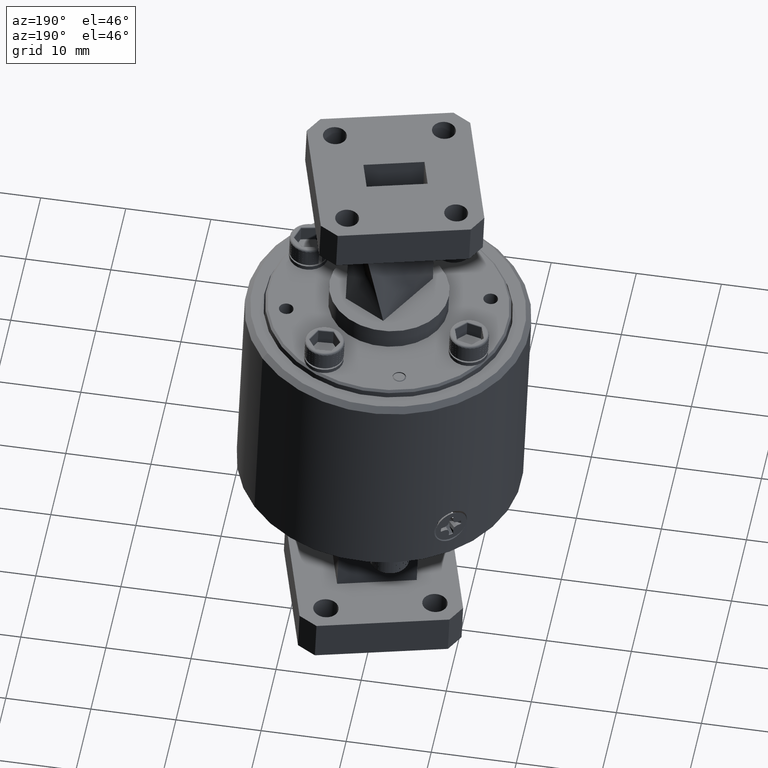
[diagram: clean part render]
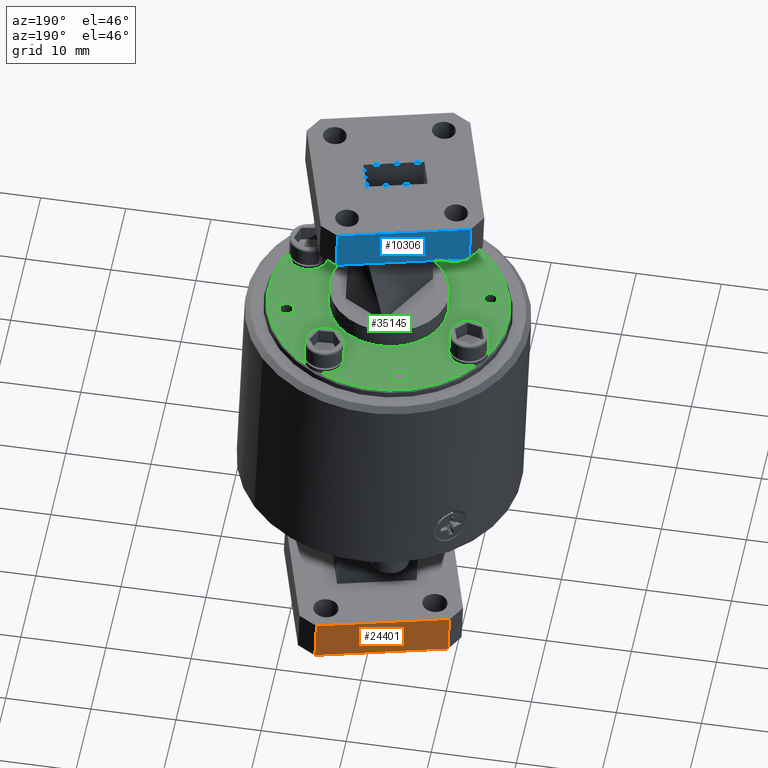
[diagram: same view with three faces highlighted in distinct colors, each labeled with its STEP entity id]
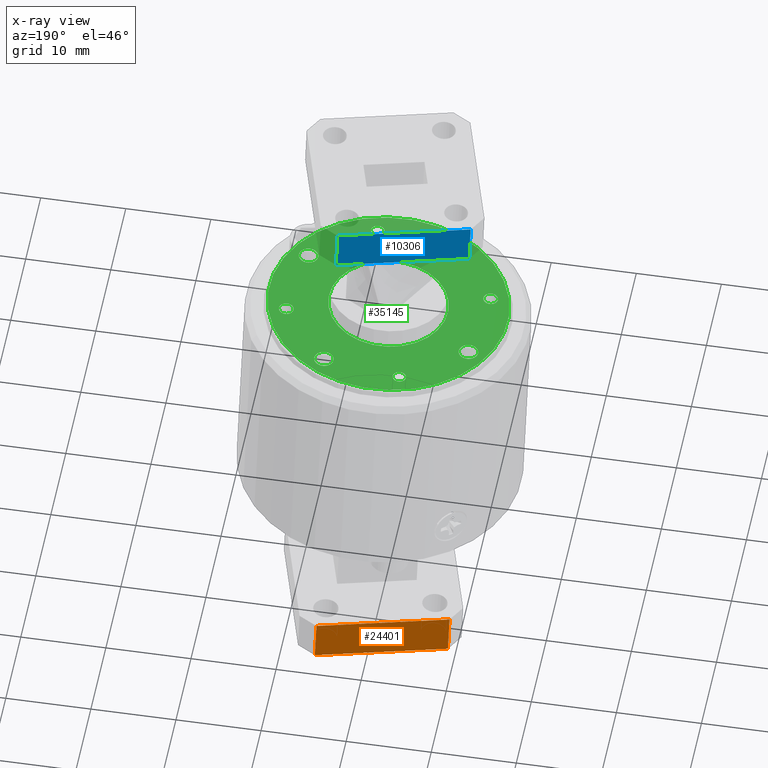
[diagram: x-ray of the same camera — body ghosted, the three highlighted faces saturated]
A machine part, auxiliary view with three faces highlighted in distinct colors.
The next image is the same camera in x-ray (body ghosted, the three faces saturated) — at least one of them is partly hidden behind the body in this view.
Their STEP definitions:

[orange] entity #24401 — the highlighted planar face has unit normal (0.2763, -0.961, -0.0077).
#2268 = AXIS2_PLACEMENT_3D ( 'NONE', #24468, #27569, #9507 ) ;
#4020 = VERTEX_POINT ( 'NONE', #4633 ) ;
#4633 = CARTESIAN_POINT ( 'NONE',  ( -5.691139806082802900, -1.619158402625346500, -2.179849709080731400 ) ) ;
#5985 = EDGE_CURVE ( 'NONE', #8149, #4020, #21956, .T. ) ;
#6436 = VERTEX_POINT ( 'NONE', #18915 ) ;
#8149 = VERTEX_POINT ( 'NONE', #33710 ) ;
#9507 = DIRECTION ( 'NONE',  ( 0.03562249074304870600, 0.01820857446431909500, -0.9991994225224706300 ) ) ;
#9990 = CARTESIAN_POINT ( 'NONE',  ( -6.344221990921528900, -1.806697032639361000, -2.206550310174017100 ) ) ;
#12526 = LINE ( 'NONE', #17666, #34373 ) ;
#15639 = EDGE_CURVE ( 'NONE', #4020, #37955, #37851, .T. ) ;
#15999 = VECTOR ( 'NONE', #32068, 39.37007874015748900 ) ;
#16244 = LINE ( 'NONE', #27714, #19497 ) ;
#17666 = CARTESIAN_POINT ( 'NONE',  ( -6.337453717680349800, -1.803237403491140300, -2.396398200453286400 ) ) ;
#18915 = CARTESIAN_POINT ( 'NONE',  ( -6.270224669241068600, -1.783931956283815000, -2.393649609164271800 ) ) ;
#18941 = ORIENTED_EDGE ( 'NONE', *, *, #21888, .T. ) ;
#18997 = PLANE ( 'NONE',  #2268 ) ;
#19497 = VECTOR ( 'NONE', #30815, 39.37007874015748900 ) ;
#21888 = EDGE_CURVE ( 'NONE', #6436, #8149, #16244, .T. ) ;
#21956 = LINE ( 'NONE', #9990, #30797 ) ;
#22263 = EDGE_CURVE ( 'NONE', #6436, #37955, #12526, .T. ) ;
#23790 = DIRECTION ( 'NONE',  ( 0.9604149777040087400, 0.2757921029617860200, 0.03926558984306748700 ) ) ;
#24295 = EDGE_LOOP ( 'NONE', ( #37509, #18941, #25016, #37109 ) ) ;
#24401 = ADVANCED_FACE ( 'NONE', ( #31982 ), #18997, .F. ) ;
#24468 = CARTESIAN_POINT ( 'NONE',  ( -6.337453717680349800, -1.803237403491140300, -2.396398200453286400 ) ) ;
#25016 = ORIENTED_EDGE ( 'NONE', *, *, #5985, .T. ) ;
#27569 = DIRECTION ( 'NONE',  ( 0.2762862804322173100, -0.9610448292144820900, -0.007663386003408646100 ) ) ;
#27714 = CARTESIAN_POINT ( 'NONE',  ( -6.270224669241068600, -1.783931956283815000, -2.393649609164271800 ) ) ;
#30797 = VECTOR ( 'NONE', #30894, 39.37007874015748100 ) ;
#30815 = DIRECTION ( 'NONE',  ( -0.03562249074304870600, -0.01820857446431909500, 0.9991994225224706300 ) ) ;
#30894 = DIRECTION ( 'NONE',  ( 0.9604149777040087400, 0.2757921029617860200, 0.03926558984306748700 ) ) ;
#31935 = CARTESIAN_POINT ( 'NONE',  ( -5.684371532841624700, -1.615698773477125800, -2.369697599360000700 ) ) ;
#31982 = FACE_OUTER_BOUND ( 'NONE', #24295, .T. ) ;
#32068 = DIRECTION ( 'NONE',  ( 0.03562249074304870600, 0.01820857446431909500, -0.9991994225224706300 ) ) ;
#33710 = CARTESIAN_POINT ( 'NONE',  ( -6.276992942482248600, -1.787391585432035700, -2.203801718885002100 ) ) ;
#34373 = VECTOR ( 'NONE', #23790, 39.37007874015748100 ) ;
#37109 = ORIENTED_EDGE ( 'NONE', *, *, #15639, .T. ) ;
#37317 = CARTESIAN_POINT ( 'NONE',  ( -5.684371532841624700, -1.615698773477125800, -2.369697599360000700 ) ) ;
#37509 = ORIENTED_EDGE ( 'NONE', *, *, #22263, .F. ) ;
#37851 = LINE ( 'NONE', #31935, #15999 ) ;
#37955 = VERTEX_POINT ( 'NONE', #37317 ) ;

[blue] entity #10306 — the highlighted planar face has unit normal (-0.2763, 0.961, 0.0077).
#539 = ORIENTED_EDGE ( 'NONE', *, *, #26205, .F. ) ;
#901 = EDGE_CURVE ( 'NONE', #30244, #2506, #15665, .T. ) ;
#1920 = AXIS2_PLACEMENT_3D ( 'NONE', #38183, #32331, #14518 ) ;
#2506 = VERTEX_POINT ( 'NONE', #22694 ) ;
#4419 = LINE ( 'NONE', #17658, #16512 ) ;
#4590 = FACE_OUTER_BOUND ( 'NONE', #29461, .T. ) ;
#6049 = EDGE_CURVE ( 'NONE', #29852, #30244, #17303, .T. ) ;
#9150 = EDGE_CURVE ( 'NONE', #24829, #29852, #16655, .T. ) ;
#10145 = CARTESIAN_POINT ( 'NONE',  ( -5.781264707662702800, -1.665226096020117700, 0.3481248299011195400 ) ) ;
#10306 = ADVANCED_FACE ( 'NONE', ( #4590 ), #17518, .T. ) ;
#10751 = DIRECTION ( 'NONE',  ( 0.9604149777040063000, 0.2757921029617945700, 0.03926558984306729300 ) ) ;
#11008 = CARTESIAN_POINT ( 'NONE',  ( -5.714035659223422500, -1.645920648812792000, 0.3508734211901343200 ) ) ;
#14518 = DIRECTION ( 'NONE',  ( 0.03562249074304842800, 0.01820857446431912300, -0.9991994225224706300 ) ) ;
#15665 = LINE ( 'NONE', #28526, #31006 ) ;
#15894 = CARTESIAN_POINT ( 'NONE',  ( -6.367117844062145000, -1.833459278826812000, 0.3241728200968485000 ) ) ;
#16512 = VECTOR ( 'NONE', #26508, 39.37007874015748900 ) ;
#16655 = LINE ( 'NONE', #15894, #38533 ) ;
#16831 = DIRECTION ( 'NONE',  ( 0.03562249074304842800, 0.01820857446431912300, -0.9991994225224706300 ) ) ;
#17303 = LINE ( 'NONE', #11008, #36369 ) ;
#17518 = PLANE ( 'NONE',  #1920 ) ;
#17658 = CARTESIAN_POINT ( 'NONE',  ( -5.707267385982242500, -1.642461019664571300, 0.1610255309108648800 ) ) ;
#18235 = ORIENTED_EDGE ( 'NONE', *, *, #901, .T. ) ;
#21192 = ORIENTED_EDGE ( 'NONE', *, *, #6049, .T. ) ;
#21404 = CARTESIAN_POINT ( 'NONE',  ( -6.360349570820965900, -1.829999649678591300, 0.1343249298175791500 ) ) ;
#22694 = CARTESIAN_POINT ( 'NONE',  ( -5.774496434421523700, -1.661766466871897000, 0.1582769396218501600 ) ) ;
#24829 = VERTEX_POINT ( 'NONE', #21404 ) ;
#26205 = EDGE_CURVE ( 'NONE', #24829, #2506, #4419, .T. ) ;
#26508 = DIRECTION ( 'NONE',  ( 0.9604149777040063000, 0.2757921029617945700, 0.03926558984306729300 ) ) ;
#28526 = CARTESIAN_POINT ( 'NONE',  ( -5.781264707662702800, -1.665226096020117700, 0.3481248299011195400 ) ) ;
#29461 = EDGE_LOOP ( 'NONE', ( #539, #32374, #21192, #18235 ) ) ;
#29852 = VERTEX_POINT ( 'NONE', #36719 ) ;
#30244 = VERTEX_POINT ( 'NONE', #10145 ) ;
#31006 = VECTOR ( 'NONE', #16831, 39.37007874015748100 ) ;
#32331 = DIRECTION ( 'NONE',  ( -0.2762862804322258100, 0.9610448292144796500, 0.007663386003408401500 ) ) ;
#32374 = ORIENTED_EDGE ( 'NONE', *, *, #9150, .T. ) ;
#36369 = VECTOR ( 'NONE', #10751, 39.37007874015748900 ) ;
#36712 = DIRECTION ( 'NONE',  ( -0.03562249074304842800, -0.01820857446431912300, 0.9991994225224706300 ) ) ;
#36719 = CARTESIAN_POINT ( 'NONE',  ( -6.367117844062145000, -1.833459278826811800, 0.3241728200968485000 ) ) ;
#38183 = CARTESIAN_POINT ( 'NONE',  ( -5.714035659223422500, -1.645920648812792000, 0.3508734211901343200 ) ) ;
#38533 = VECTOR ( 'NONE', #36712, 39.37007874015748100 ) ;

[green] entity #35145 — the highlighted planar face has unit normal (0.0356, 0.0182, -0.9992).
#46 = EDGE_LOOP ( 'NONE', ( #15499, #17839 ) ) ;
#65 = VERTEX_POINT ( 'NONE', #236 ) ;
#236 = CARTESIAN_POINT ( 'NONE',  ( -6.210158264223941200, -2.516669442206202600, -0.5233546832888029700 ) ) ;
#781 = CARTESIAN_POINT ( 'NONE',  ( -5.811151834523572600, -2.544929059523153700, -0.5096446718602671800 ) ) ;
#1005 = CARTESIAN_POINT ( 'NONE',  ( -5.811151834523572600, -2.544929059523153700, -0.5096446718602671800 ) ) ;
#1382 = CARTESIAN_POINT ( 'NONE',  ( -5.781619073959174000, -2.536448452357078500, -0.5084372549725928400 ) ) ;
#1395 = CIRCLE ( 'NONE', #9815, 0.2749999999999999100 ) ;
#1429 = DIRECTION ( 'NONE',  ( -0.9604149777040063000, -0.2757921029617945200, -0.03926558984306728600 ) ) ;
#1499 = AXIS2_PLACEMENT_3D ( 'NONE', #33250, #21415, #29754 ) ;
#1672 = CIRCLE ( 'NONE', #21477, 0.04449999999999967900 ) ;
#2150 = DIRECTION ( 'NONE',  ( 0.03562249074304843500, 0.01820857446431912300, -0.9991994225224707400 ) ) ;
#2247 = DIRECTION ( 'NONE',  ( 0.03562249074304842800, 0.01820857446431912300, -0.9991994225224706300 ) ) ;
#2482 = EDGE_CURVE ( 'NONE', #26799, #17406, #3933, .T. ) ;
#2525 = EDGE_LOOP ( 'NONE', ( #12467, #7438 ) ) ;
#2778 = CARTESIAN_POINT ( 'NONE',  ( -6.471290303657642800, -2.246814432715258400, -0.5277466980594641700 ) ) ;
#3024 = EDGE_CURVE ( 'NONE', #4080, #24079, #25330, .T. ) ;
#3208 = CARTESIAN_POINT ( 'NONE',  ( -5.676546909607576900, -2.018596467514373000, -0.4952544224643259900 ) ) ;
#3455 = CARTESIAN_POINT ( 'NONE',  ( -6.167419797716113400, -2.504396693624402600, -0.5216073645407863800 ) ) ;
#3791 = DIRECTION ( 'NONE',  ( 0.03562249074304842800, 0.01820857446431912300, -0.9991994225224706300 ) ) ;
#3843 = DIRECTION ( 'NONE',  ( 0.03562249074304842800, 0.01820857446431912300, -0.9991994225224706300 ) ) ;
#3852 = DIRECTION ( 'NONE',  ( 0.03562249074304842800, 0.01820857446431912300, -0.9991994225224706300 ) ) ;
#3933 = CIRCLE ( 'NONE', #14465, 0.03350000000000001600 ) ;
#3949 = DIRECTION ( 'NONE',  ( 0.03562249074304842800, 0.01820857446431912300, -0.9991994225224706300 ) ) ;
#4080 = VERTEX_POINT ( 'NONE', #34679 ) ;
#4451 = CIRCLE ( 'NONE', #33388, 0.03075000000000010700 ) ;
#4636 = CARTESIAN_POINT ( 'NONE',  ( -5.490466507677425100, -1.965161747565525600, -0.4876467144322317300 ) ) ;
#4738 = DIRECTION ( 'NONE',  ( 0.03562249074304842800, 0.01820857446431912300, -0.9991994225224706300 ) ) ;
#4776 = CARTESIAN_POINT ( 'NONE',  ( -5.573487067204288400, -2.333843380141842800, -0.4973250287463130100 ) ) ;
#4943 = DIRECTION ( 'NONE',  ( -0.9604149777040061900, -0.2757921029617949600, -0.03926558984306725100 ) ) ;
#4948 = EDGE_LOOP ( 'NONE', ( #8062, #24071 ) ) ;
#5079 = CARTESIAN_POINT ( 'NONE',  ( -5.713902259236243200, -1.684481898033330900, -0.4904975548015525500 ) ) ;
#5345 = EDGE_CURVE ( 'NONE', #28018, #7221, #10377, .T. ) ;
#5348 = FACE_BOUND ( 'NONE', #24612, .T. ) ;
#5358 = CIRCLE ( 'NONE', #21823, 0.03075000000000010700 ) ;
#6130 = DIRECTION ( 'NONE',  ( -0.9604149777040057500, -0.2757921029617964600, -0.03926558984306789000 ) ) ;
#6295 = FACE_OUTER_BOUND ( 'NONE', #8527, .T. ) ;
#6300 = CIRCLE ( 'NONE', #9816, 0.03075000000000010700 ) ;
#6320 = ORIENTED_EDGE ( 'NONE', *, *, #14572, .T. ) ;
#6539 = EDGE_CURVE ( 'NONE', #15883, #23794, #1395, .T. ) ;
#6672 = AXIS2_PLACEMENT_3D ( 'NONE', #31583, #8337, #4943 ) ;
#6964 = EDGE_CURVE ( 'NONE', #7221, #28018, #23295, .T. ) ;
#7089 = DIRECTION ( 'NONE',  ( -0.9604149777040064100, -0.2757921029617947400, -0.03926558984306744600 ) ) ;
#7155 = CARTESIAN_POINT ( 'NONE',  ( -5.488010134188632700, -2.309297882978242900, -0.4938303912502800000 ) ) ;
#7221 = VERTEX_POINT ( 'NONE', #4776 ) ;
#7235 = AXIS2_PLACEMENT_3D ( 'NONE', #25966, #2150, #14261 ) ;
#7350 = ORIENTED_EDGE ( 'NONE', *, *, #6539, .T. ) ;
#7381 = DIRECTION ( 'NONE',  ( -0.9604149777040064100, -0.2757921029617940200, -0.03926558984306728600 ) ) ;
#7410 = EDGE_LOOP ( 'NONE', ( #20037, #22107 ) ) ;
#7438 = ORIENTED_EDGE ( 'NONE', *, *, #36485, .T. ) ;
#7630 = DIRECTION ( 'NONE',  ( -0.9604149777040064100, -0.2757921029617947400, -0.03926558984306744600 ) ) ;
#7750 = DIRECTION ( 'NONE',  ( -0.9604149777040064100, -0.2757921029617947400, -0.03926558984306744600 ) ) ;
#8062 = ORIENTED_EDGE ( 'NONE', *, *, #15050, .T. ) ;
#8128 = CIRCLE ( 'NONE', #34984, 0.04449999999999967900 ) ;
#8337 = DIRECTION ( 'NONE',  ( -0.03562249074304842800, -0.01820857446431912300, 0.9991994225224706300 ) ) ;
#8527 = EDGE_LOOP ( 'NONE', ( #12073, #31348 ) ) ;
#8607 = DIRECTION ( 'NONE',  ( -0.9604149777040057500, -0.2757921029617964600, -0.03926558984306789000 ) ) ;
#8830 = DIRECTION ( 'NONE',  ( -0.03562249074304842800, -0.01820857446431912300, 0.9991994225224706300 ) ) ;
#9166 = CARTESIAN_POINT ( 'NONE',  ( -6.393311922763723800, -1.879580708679490200, -0.5182745280920589800 ) ) ;
#9815 = AXIS2_PLACEMENT_3D ( 'NONE', #34353, #10460, #1429 ) ;
#9816 = AXIS2_PLACEMENT_3D ( 'NONE', #1005, #24987, #7381 ) ;
#9847 = DIRECTION ( 'NONE',  ( 0.03562249074304842800, 0.01820857446431912300, -0.9991994225224706300 ) ) ;
#10029 = DIRECTION ( 'NONE',  ( 0.03562249074304842800, 0.01820857446431912300, -0.9991994225224706300 ) ) ;
#10046 = CIRCLE ( 'NONE', #29973, 0.2749999999999999100 ) ;
#10081 = DIRECTION ( 'NONE',  ( -0.9604149777040064100, -0.2757921029617947400, -0.03926558984306744600 ) ) ;
#10106 = CARTESIAN_POINT ( 'NONE',  ( -6.390855549274931500, -2.223716844092207700, -0.5244582049101073100 ) ) ;
#10377 = CIRCLE ( 'NONE', #28708, 0.04449999999999967900 ) ;
#10460 = DIRECTION ( 'NONE',  ( 0.03562249074304842800, 0.01820857446431912300, -0.9991994225224706300 ) ) ;
#10671 = EDGE_CURVE ( 'NONE', #17914, #25171, #20881, .T. ) ;
#10896 = PLANE ( 'NONE',  #7235 ) ;
#11123 = DIRECTION ( 'NONE',  ( -0.9604149777040057500, -0.2757921029617964600, -0.03926558984306789000 ) ) ;
#11356 = CARTESIAN_POINT ( 'NONE',  ( -5.713902259236243200, -1.684481898033330900, -0.4904975548015525500 ) ) ;
#11360 = DIRECTION ( 'NONE',  ( -0.9604149777040064100, -0.2757921029617940200, -0.03926558984306728600 ) ) ;
#11402 = FACE_BOUND ( 'NONE', #4948, .T. ) ;
#11747 = AXIS2_PLACEMENT_3D ( 'NONE', #14596, #26183, #11360 ) ;
#11945 = DIRECTION ( 'NONE',  ( -0.9604149777040061900, -0.2757921029617949600, -0.03926558984306725100 ) ) ;
#12073 = ORIENTED_EDGE ( 'NONE', *, *, #30968, .T. ) ;
#12096 = AXIS2_PLACEMENT_3D ( 'NONE', #3455, #15564, #18552 ) ;
#12336 = EDGE_CURVE ( 'NONE', #65, #24773, #32916, .T. ) ;
#12379 = DIRECTION ( 'NONE',  ( -0.9604149777040063000, -0.2757921029617945200, -0.03926558984306728600 ) ) ;
#12444 = AXIS2_PLACEMENT_3D ( 'NONE', #5079, #26425, #8607 ) ;
#12467 = ORIENTED_EDGE ( 'NONE', *, *, #27016, .T. ) ;
#12529 = VERTEX_POINT ( 'NONE', #19123 ) ;
#12788 = AXIS2_PLACEMENT_3D ( 'NONE', #10106, #3843, #7089 ) ;
#13675 = EDGE_CURVE ( 'NONE', #25171, #17914, #1672, .T. ) ;
#14261 = DIRECTION ( 'NONE',  ( -0.9604149777040063000, -0.2757921029617946300, -0.03926558984306730000 ) ) ;
#14302 = AXIS2_PLACEMENT_3D ( 'NONE', #4636, #19107, #7630 ) ;
#14465 = AXIS2_PLACEMENT_3D ( 'NONE', #28292, #4738, #7750 ) ;
#14572 = EDGE_CURVE ( 'NONE', #14636, #35607, #6300, .T. ) ;
#14596 = CARTESIAN_POINT ( 'NONE',  ( -6.070170222428783900, -1.643949532134579400, -0.5024602474820718500 ) ) ;
#14636 = VERTEX_POINT ( 'NONE', #1382 ) ;
#14670 = CARTESIAN_POINT ( 'NONE',  ( -6.124681331208285500, -2.492123945042602700, -0.5198600457927699000 ) ) ;
#15050 = EDGE_CURVE ( 'NONE', #20620, #12529, #8128, .T. ) ;
#15499 = ORIENTED_EDGE ( 'NONE', *, *, #10671, .T. ) ;
#15564 = DIRECTION ( 'NONE',  ( 0.03562249074304842800, 0.01820857446431912300, -0.9991994225224706300 ) ) ;
#15832 = CARTESIAN_POINT ( 'NONE',  ( -5.530748600696460600, -2.321570631560042800, -0.4955777099982964800 ) ) ;
#15883 = VERTEX_POINT ( 'NONE', #3208 ) ;
#16452 = ORIENTED_EDGE ( 'NONE', *, *, #12336, .T. ) ;
#16566 = EDGE_LOOP ( 'NONE', ( #30921, #24815 ) ) ;
#16823 = CARTESIAN_POINT ( 'NONE',  ( -5.840684595087971300, -2.553409666689229000, -0.5108520887479415200 ) ) ;
#16973 = CARTESIAN_POINT ( 'NONE',  ( -5.530748600696460600, -2.321570631560042800, -0.4955777099982964800 ) ) ;
#17255 = EDGE_CURVE ( 'NONE', #24773, #65, #28439, .T. ) ;
#17406 = VERTEX_POINT ( 'NONE', #37648 ) ;
#17839 = ORIENTED_EDGE ( 'NONE', *, *, #13675, .T. ) ;
#17914 = VERTEX_POINT ( 'NONE', #19676 ) ;
#17922 = CARTESIAN_POINT ( 'NONE',  ( -5.940661028476178300, -2.094439295828866700, -0.5060524596711695200 ) ) ;
#18098 = CIRCLE ( 'NONE', #6672, 0.5524999999999997700 ) ;
#18472 = CARTESIAN_POINT ( 'NONE',  ( -5.940661028476178300, -2.094439295828866700, -0.5060524596711695200 ) ) ;
#18552 = DIRECTION ( 'NONE',  ( -0.9604149777040057500, -0.2757921029617964600, -0.03926558984306789000 ) ) ;
#19107 = DIRECTION ( 'NONE',  ( 0.03562249074304842800, 0.01820857446431912300, -0.9991994225224706300 ) ) ;
#19123 = CARTESIAN_POINT ( 'NONE',  ( -6.307834989748068100, -1.855035211515890600, -0.5147798905960260200 ) ) ;
#19676 = CARTESIAN_POINT ( 'NONE',  ( -5.756640725744071000, -1.696754646615130900, -0.4922448735495690800 ) ) ;
#20037 = ORIENTED_EDGE ( 'NONE', *, *, #3024, .T. ) ;
#20078 = EDGE_LOOP ( 'NONE', ( #32515, #26594 ) ) ;
#20620 = VERTEX_POINT ( 'NONE', #9166 ) ;
#20881 = CIRCLE ( 'NONE', #12444, 0.04449999999999967900 ) ;
#21180 = FACE_BOUND ( 'NONE', #20078, .T. ) ;
#21415 = DIRECTION ( 'NONE',  ( 0.03562249074304842800, 0.01820857446431912300, -0.9991994225224706300 ) ) ;
#21477 = AXIS2_PLACEMENT_3D ( 'NONE', #11356, #32129, #38249 ) ;
#21596 = CARTESIAN_POINT ( 'NONE',  ( -6.204775147344780500, -2.170282124143359900, -0.5168504968780129900 ) ) ;
#21664 = FACE_BOUND ( 'NONE', #7410, .T. ) ;
#21823 = AXIS2_PLACEMENT_3D ( 'NONE', #27840, #10029, #28444 ) ;
#22107 = ORIENTED_EDGE ( 'NONE', *, *, #28835, .T. ) ;
#22207 = AXIS2_PLACEMENT_3D ( 'NONE', #33345, #3949, #10081 ) ;
#22836 = CARTESIAN_POINT ( 'NONE',  ( -5.522640409430509000, -1.974400783014745400, -0.4889621116919744500 ) ) ;
#23049 = FACE_BOUND ( 'NONE', #30628, .T. ) ;
#23295 = CIRCLE ( 'NONE', #31999, 0.04449999999999967900 ) ;
#23504 = VERTEX_POINT ( 'NONE', #22836 ) ;
#23794 = VERTEX_POINT ( 'NONE', #21596 ) ;
#23826 = DIRECTION ( 'NONE',  ( 0.03562249074304842800, 0.01820857446431912300, -0.9991994225224706300 ) ) ;
#24071 = ORIENTED_EDGE ( 'NONE', *, *, #36816, .T. ) ;
#24079 = VERTEX_POINT ( 'NONE', #31466 ) ;
#24288 = DIRECTION ( 'NONE',  ( -0.9604149777040057500, -0.2757921029617964600, -0.03926558984306789000 ) ) ;
#24612 = EDGE_LOOP ( 'NONE', ( #7350, #36651 ) ) ;
#24729 = DIRECTION ( 'NONE',  ( 0.03562249074304842800, 0.01820857446431912300, -0.9991994225224706300 ) ) ;
#24773 = VERTEX_POINT ( 'NONE', #14670 ) ;
#24815 = ORIENTED_EDGE ( 'NONE', *, *, #24879, .T. ) ;
#24879 = EDGE_CURVE ( 'NONE', #17406, #26799, #33349, .T. ) ;
#24987 = DIRECTION ( 'NONE',  ( 0.03562249074304842800, 0.01820857446431912300, -0.9991994225224706300 ) ) ;
#25171 = VERTEX_POINT ( 'NONE', #38021 ) ;
#25330 = CIRCLE ( 'NONE', #11747, 0.03075000000000010700 ) ;
#25820 = EDGE_CURVE ( 'NONE', #23794, #15883, #10046, .T. ) ;
#25966 = CARTESIAN_POINT ( 'NONE',  ( -5.940661028476178300, -2.094439295828866700, -0.5060524596711695200 ) ) ;
#26183 = DIRECTION ( 'NONE',  ( 0.03562249074304842800, 0.01820857446431912300, -0.9991994225224706300 ) ) ;
#26425 = DIRECTION ( 'NONE',  ( 0.03562249074304842800, 0.01820857446431912300, -0.9991994225224706300 ) ) ;
#26433 = EDGE_LOOP ( 'NONE', ( #37908, #6320 ) ) ;
#26594 = ORIENTED_EDGE ( 'NONE', *, *, #5345, .T. ) ;
#26799 = VERTEX_POINT ( 'NONE', #35374 ) ;
#27016 = EDGE_CURVE ( 'NONE', #23504, #27595, #34611, .T. ) ;
#27194 = CARTESIAN_POINT ( 'NONE',  ( -6.167419797716113400, -2.504396693624402600, -0.5216073645407863800 ) ) ;
#27527 = DIRECTION ( 'NONE',  ( -0.9604149777040057500, -0.2757921029617964600, -0.03926558984306789000 ) ) ;
#27595 = VERTEX_POINT ( 'NONE', #31359 ) ;
#27840 = CARTESIAN_POINT ( 'NONE',  ( -6.070170222428783900, -1.643949532134579400, -0.5024602474820718500 ) ) ;
#28018 = VERTEX_POINT ( 'NONE', #7155 ) ;
#28036 = AXIS2_PLACEMENT_3D ( 'NONE', #17922, #8830, #11945 ) ;
#28151 = FACE_BOUND ( 'NONE', #46, .T. ) ;
#28292 = CARTESIAN_POINT ( 'NONE',  ( -6.390855549274931500, -2.223716844092207700, -0.5244582049101073100 ) ) ;
#28439 = CIRCLE ( 'NONE', #12096, 0.04449999999999967900 ) ;
#28444 = DIRECTION ( 'NONE',  ( -0.9604149777040064100, -0.2757921029617940200, -0.03926558984306728600 ) ) ;
#28708 = AXIS2_PLACEMENT_3D ( 'NONE', #16973, #2247, #11123 ) ;
#28835 = EDGE_CURVE ( 'NONE', #24079, #4080, #5358, .T. ) ;
#29066 = EDGE_CURVE ( 'NONE', #29508, #38499, #37744, .T. ) ;
#29086 = FACE_BOUND ( 'NONE', #26433, .T. ) ;
#29508 = VERTEX_POINT ( 'NONE', #34389 ) ;
#29564 = FACE_BOUND ( 'NONE', #2525, .T. ) ;
#29754 = DIRECTION ( 'NONE',  ( -0.9604149777040057500, -0.2757921029617964600, -0.03926558984306789000 ) ) ;
#29973 = AXIS2_PLACEMENT_3D ( 'NONE', #18472, #24729, #12379 ) ;
#30585 = DIRECTION ( 'NONE',  ( -0.9604149777040064100, -0.2757921029617940200, -0.03926558984306728600 ) ) ;
#30628 = EDGE_LOOP ( 'NONE', ( #16452, #32729 ) ) ;
#30921 = ORIENTED_EDGE ( 'NONE', *, *, #2482, .T. ) ;
#30968 = EDGE_CURVE ( 'NONE', #38499, #29508, #18098, .T. ) ;
#31348 = ORIENTED_EDGE ( 'NONE', *, *, #29066, .T. ) ;
#31359 = CARTESIAN_POINT ( 'NONE',  ( -5.458292605924342000, -1.955922712116305400, -0.4863313171724890100 ) ) ;
#31466 = CARTESIAN_POINT ( 'NONE',  ( -6.040637461864386100, -1.635468924968504200, -0.5012528305943975100 ) ) ;
#31583 = CARTESIAN_POINT ( 'NONE',  ( -5.940661028476178300, -2.094439295828866700, -0.5060524596711695200 ) ) ;
#31999 = AXIS2_PLACEMENT_3D ( 'NONE', #15832, #3852, #24288 ) ;
#32129 = DIRECTION ( 'NONE',  ( 0.03562249074304842800, 0.01820857446431912300, -0.9991994225224706300 ) ) ;
#32233 = CIRCLE ( 'NONE', #22207, 0.03350000000000001600 ) ;
#32459 = AXIS2_PLACEMENT_3D ( 'NONE', #27194, #23826, #6130 ) ;
#32515 = ORIENTED_EDGE ( 'NONE', *, *, #6964, .T. ) ;
#32729 = ORIENTED_EDGE ( 'NONE', *, *, #17255, .T. ) ;
#32916 = CIRCLE ( 'NONE', #32459, 0.04449999999999967900 ) ;
#33250 = CARTESIAN_POINT ( 'NONE',  ( -6.350573456255896000, -1.867307960097690500, -0.5165272093440425000 ) ) ;
#33345 = CARTESIAN_POINT ( 'NONE',  ( -5.490466507677425100, -1.965161747565525600, -0.4876467144322317300 ) ) ;
#33349 = CIRCLE ( 'NONE', #12788, 0.03350000000000001600 ) ;
#33388 = AXIS2_PLACEMENT_3D ( 'NONE', #781, #3791, #30585 ) ;
#34353 = CARTESIAN_POINT ( 'NONE',  ( -5.940661028476178300, -2.094439295828866700, -0.5060524596711695200 ) ) ;
#34357 = EDGE_CURVE ( 'NONE', #35607, #14636, #4451, .T. ) ;
#34389 = CARTESIAN_POINT ( 'NONE',  ( -5.410031753294713800, -1.942064158942475200, -0.4843582212828747600 ) ) ;
#34611 = CIRCLE ( 'NONE', #14302, 0.03350000000000001600 ) ;
#34679 = CARTESIAN_POINT ( 'NONE',  ( -6.099702982993182600, -1.652430139300654400, -0.5036676643697460800 ) ) ;
#34984 = AXIS2_PLACEMENT_3D ( 'NONE', #36761, #9847, #27527 ) ;
#35145 = ADVANCED_FACE ( 'NONE', ( #6295, #29564, #36996, #21664, #29086, #28151, #11402, #23049, #21180, #5348 ), #10896, .F. ) ;
#35374 = CARTESIAN_POINT ( 'NONE',  ( -6.423029451028014600, -2.232955879541428200, -0.5257736021698499200 ) ) ;
#35607 = VERTEX_POINT ( 'NONE', #16823 ) ;
#36443 = CIRCLE ( 'NONE', #1499, 0.04449999999999967900 ) ;
#36485 = EDGE_CURVE ( 'NONE', #27595, #23504, #32233, .T. ) ;
#36651 = ORIENTED_EDGE ( 'NONE', *, *, #25820, .T. ) ;
#36761 = CARTESIAN_POINT ( 'NONE',  ( -6.350573456255896000, -1.867307960097690500, -0.5165272093440425000 ) ) ;
#36816 = EDGE_CURVE ( 'NONE', #12529, #20620, #36443, .T. ) ;
#36996 = FACE_BOUND ( 'NONE', #16566, .T. ) ;
#37648 = CARTESIAN_POINT ( 'NONE',  ( -6.358681647521846600, -2.214477808642988200, -0.5231428076503644700 ) ) ;
#37744 = CIRCLE ( 'NONE', #28036, 0.5524999999999997700 ) ;
#37908 = ORIENTED_EDGE ( 'NONE', *, *, #34357, .T. ) ;
#38021 = CARTESIAN_POINT ( 'NONE',  ( -5.671163792728415300, -1.672209149451531000, -0.4887502360535360700 ) ) ;
#38249 = DIRECTION ( 'NONE',  ( -0.9604149777040057500, -0.2757921029617964600, -0.03926558984306789000 ) ) ;
#38499 = VERTEX_POINT ( 'NONE', #2778 ) ;